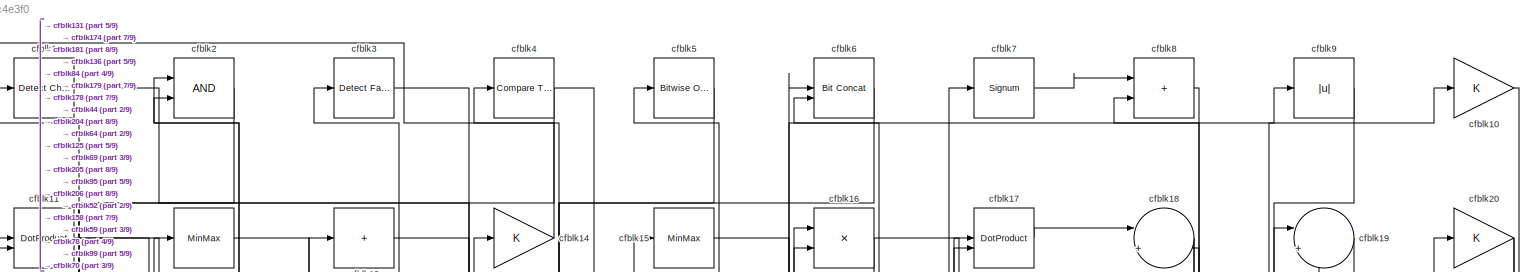
[diagram: root canvas - part 1/9, full width, top band]
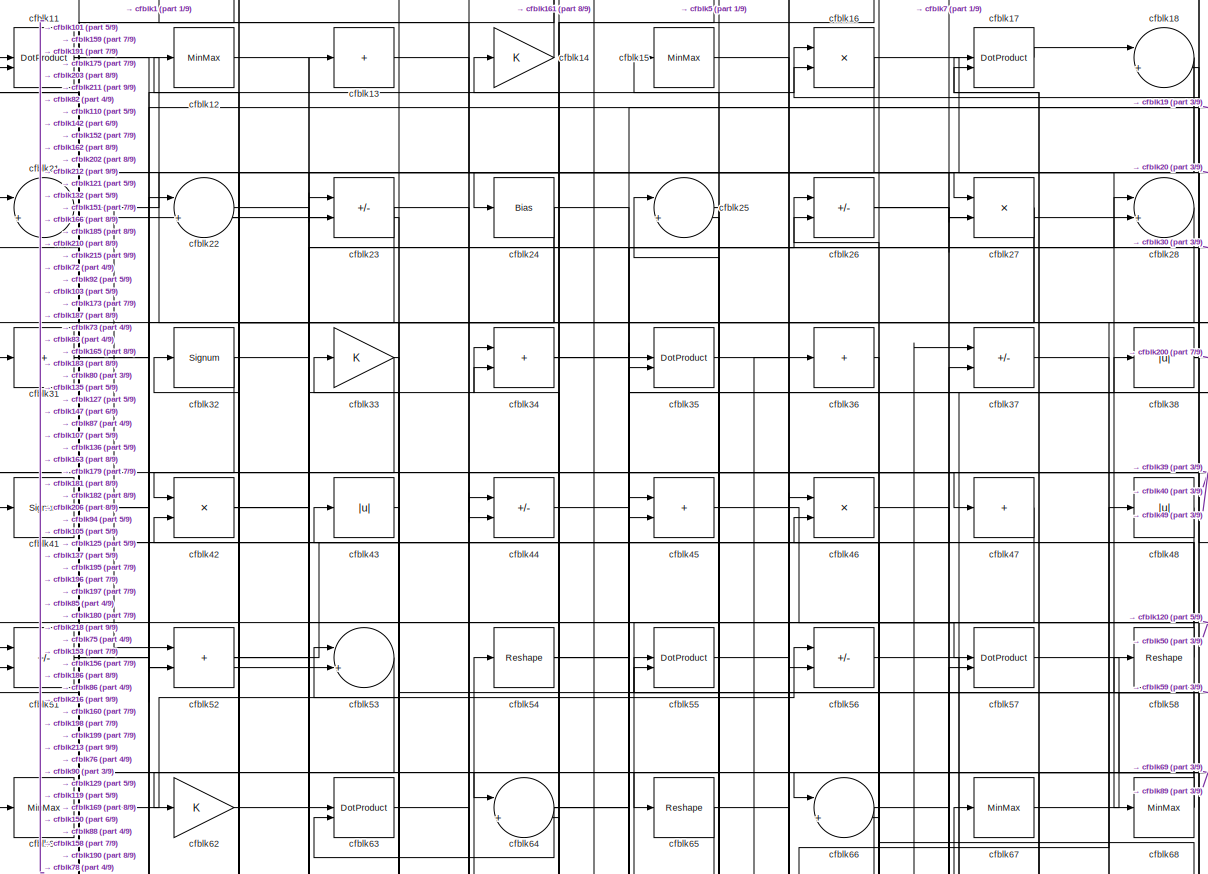
[diagram: root canvas - part 2/9, full width, top band]
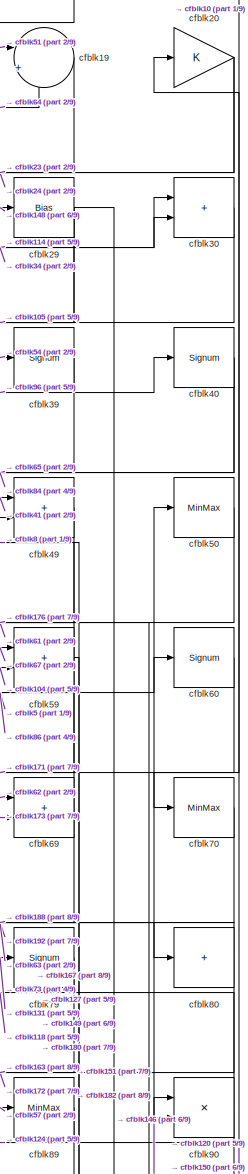
[diagram: root canvas - part 3/9, top right region]
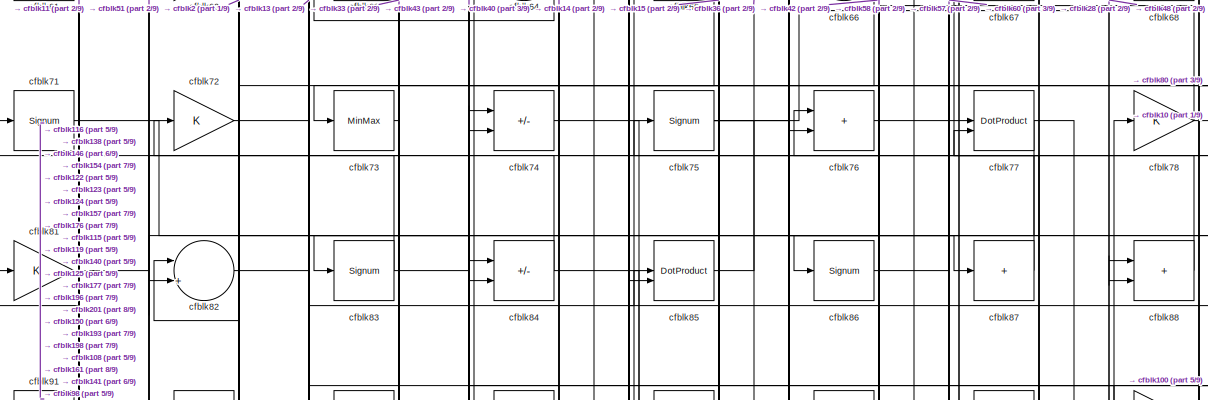
[diagram: root canvas - part 4/9, full width, middle band]
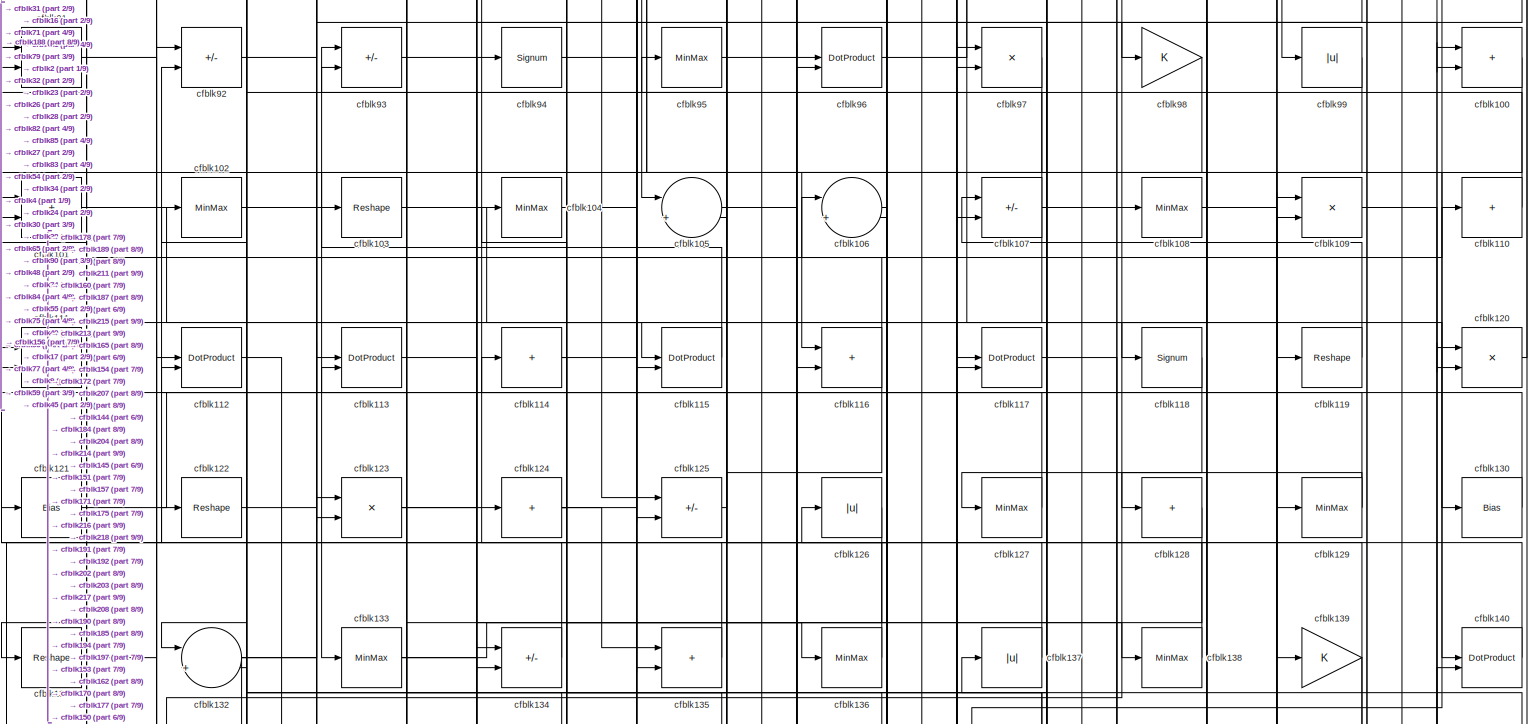
[diagram: root canvas - part 5/9, full width, middle band]
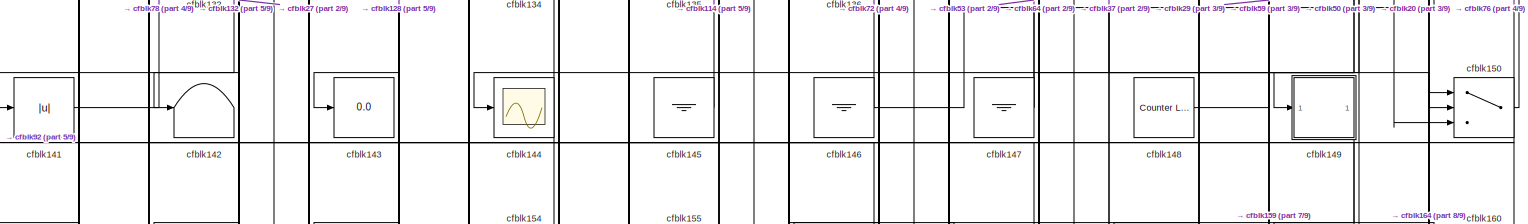
[diagram: root canvas - part 6/9, full width, middle band]
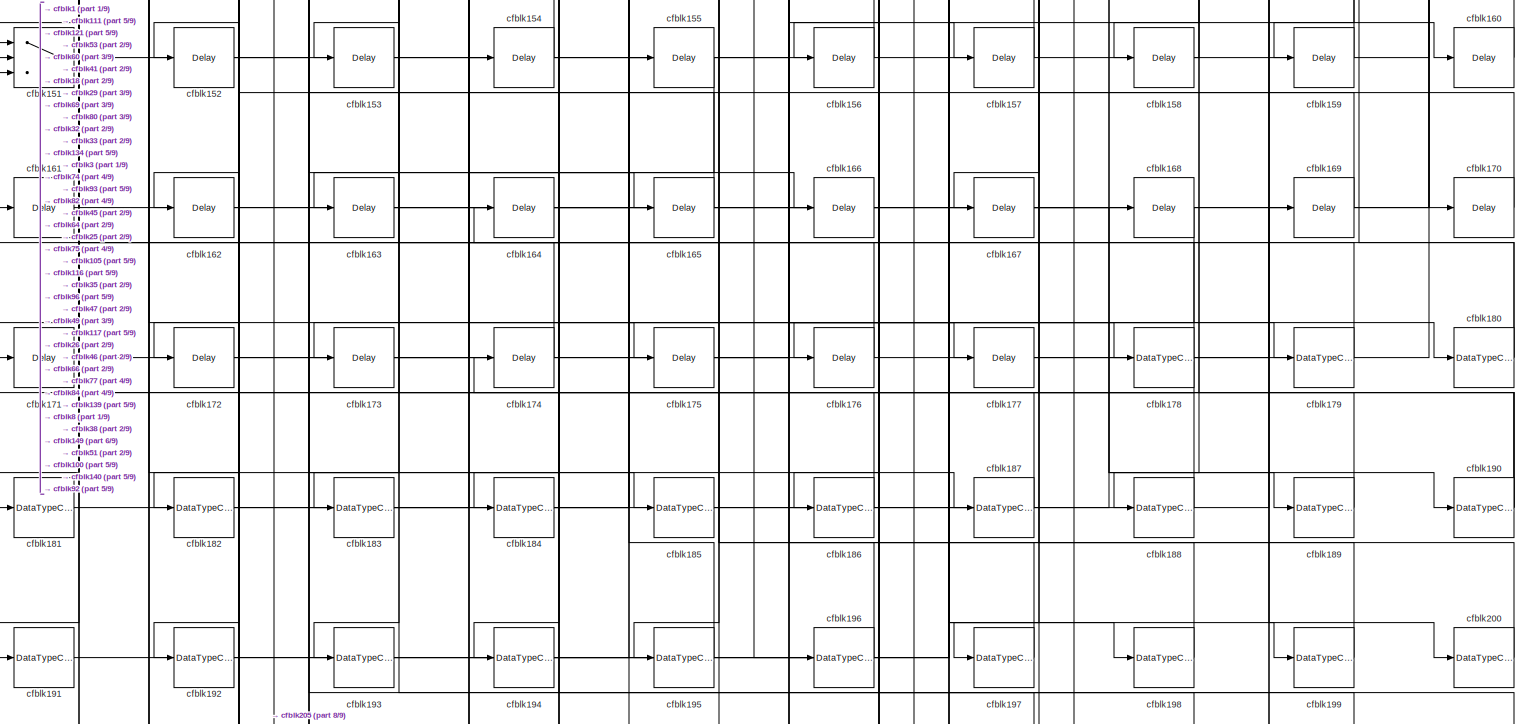
[diagram: root canvas - part 7/9, full width, bottom band]
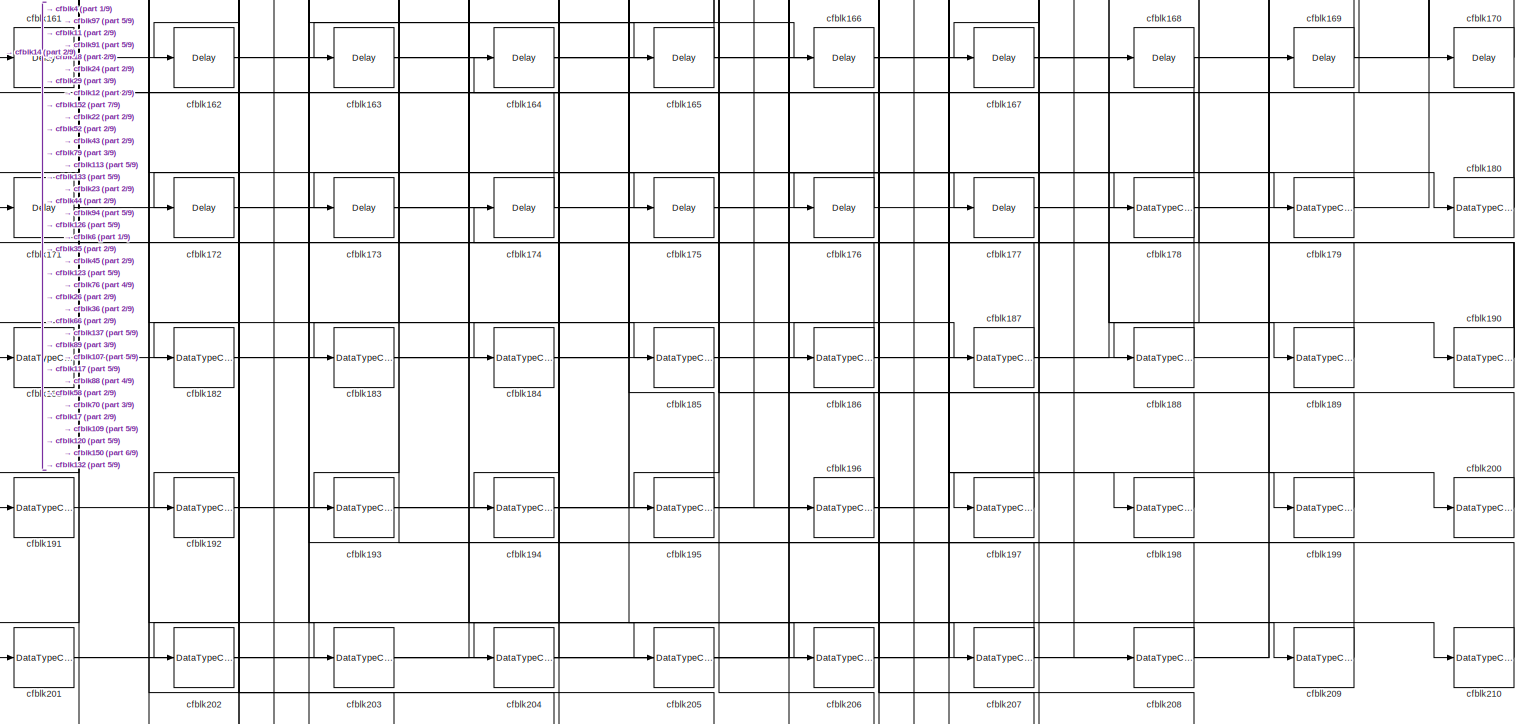
[diagram: root canvas - part 8/9, full width, bottom band]
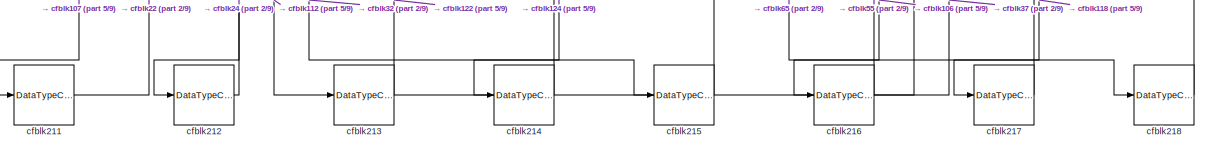
[diagram: root canvas - part 9/9, full width, bottom band]
MODEL slx_ac9d70c4e3f0
KIND model
CONFIG AbsTol = auto
CONFIG EnableMultiTasking = off
CONFIG FixedStep = auto
CONFIG MaxStep = auto
CONFIG MinStep = auto
CONFIG RelTol = 1e-3
CONFIG SampleTimeConstraint = Unconstrained
CONFIG SolverName = VariableStepAuto
CONFIG StartTime = 0.0
CONFIG StopTime = 10.0
BLOCK [Reference] cfblk1  REF=simulink/Logic and Bit
Operations/Detect
Change
  LibrarySourceBlock = hdlsllib/Logic and Bit\nOperations/Detect\nChange
  SourceBlock = simulink/Logic and Bit\nOperations/Detect\nChange
  SourceType = Detect Change
BLOCK [Gain] cfblk10
BLOCK [Sum] cfblk100
  IconShape = rectangular
BLOCK [Sum] cfblk101
  IconShape = rectangular
BLOCK [MinMax] cfblk102
BLOCK [Reshape] cfblk103
BLOCK [MinMax] cfblk104
BLOCK [Sum] cfblk105
  Inputs = |++
BLOCK [Sum] cfblk106
  Inputs = |++
BLOCK [Sum] cfblk107
  IconShape = rectangular
  Inputs = +-
BLOCK [MinMax] cfblk108
BLOCK [Product] cfblk109
  Inputs = */
  RndMeth = Zero
  SaturateOnIntegerOverflow = on
BLOCK [DotProduct] cfblk11
  OutDataTypeStr = Inherit: Inherit via internal rule
BLOCK [Sum] cfblk110
  IconShape = rectangular
  Inputs = +
BLOCK [Product] cfblk111
  Inputs = */
  RndMeth = Zero
  SaturateOnIntegerOverflow = on
BLOCK [DotProduct] cfblk112
  OutDataTypeStr = Inherit: Inherit via internal rule
BLOCK [DotProduct] cfblk113
  OutDataTypeStr = Inherit: Inherit via internal rule
BLOCK [Sum] cfblk114
  IconShape = rectangular
  Inputs = +
BLOCK [DotProduct] cfblk115
  OutDataTypeStr = Inherit: Inherit via internal rule
BLOCK [Sum] cfblk116
  IconShape = rectangular
BLOCK [DotProduct] cfblk117
  OutDataTypeStr = Inherit: Inherit via internal rule
BLOCK [Signum] cfblk118
BLOCK [Reshape] cfblk119
BLOCK [MinMax] cfblk12
BLOCK [Product] cfblk120
  Inputs = */
  RndMeth = Zero
  SaturateOnIntegerOverflow = on
BLOCK [Bias] cfblk121
  Bias = 0.0
  SaturateOnIntegerOverflow = off
BLOCK [Reshape] cfblk122
BLOCK [Product] cfblk123
  Inputs = */
  RndMeth = Zero
  SaturateOnIntegerOverflow = on
BLOCK [Sum] cfblk124
  IconShape = rectangular
  Inputs = +
BLOCK [Sum] cfblk125
  IconShape = rectangular
  Inputs = +-
BLOCK [Abs] cfblk126
  SaturateOnIntegerOverflow = off
BLOCK [MinMax] cfblk127
BLOCK [Sum] cfblk128
  IconShape = rectangular
  Inputs = +
BLOCK [MinMax] cfblk129
BLOCK [Sum] cfblk13
  IconShape = rectangular
  Inputs = +
BLOCK [Bias] cfblk130
  Bias = 0.0
  SaturateOnIntegerOverflow = off
BLOCK [Reshape] cfblk131
BLOCK [Sum] cfblk132
  Inputs = |++
BLOCK [MinMax] cfblk133
BLOCK [Sum] cfblk134
  IconShape = rectangular
  Inputs = +-
BLOCK [Sum] cfblk135
  IconShape = rectangular
BLOCK [MinMax] cfblk136
BLOCK [Abs] cfblk137
  SaturateOnIntegerOverflow = off
BLOCK [MinMax] cfblk138
BLOCK [Gain] cfblk139
BLOCK [Gain] cfblk14
BLOCK [DotProduct] cfblk140
  OutDataTypeStr = Inherit: Inherit via internal rule
BLOCK [Abs] cfblk141
  SaturateOnIntegerOverflow = off
BLOCK [Terminator] cfblk142
BLOCK [Display] cfblk143
  Decimation = 1
BLOCK [Scope] cfblk144
  Floating = off
  NumInputPorts = 1
  ScopeSpecificationString = Simulink.scopes.TimeScopeBlockCfg('CurrentConfiguration', extmgr.ConfigurationSet(extmgr.Configuration('Core','General UI',true),extmgr.Configuration('Core','Source UI',true),extmgr.Configuration('Sources','WiredSimulink',true,'DataLoggingVariableName','ScopeData2','DataLoggingSaveFormat','Array','DataLoggingLimitDataPoints',true,'DataLoggingDecimation','1'),extmgr.Configuration('Visuals','Time Do...<+868ch>
BLOCK [Ground] cfblk145
BLOCK [Ground] cfblk146
BLOCK [Ground] cfblk147
BLOCK [Reference] cfblk148  REF=hdlsllib/Sources/Counter
Limited
  SourceBlock = hdlsllib/Sources/Counter\nLimited
  SourceType = Counter Limited
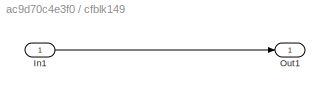
BLOCK [SubSystem] cfblk149
  LibrarySourceBlock = hdlsllib/Ports &\nSubsystems/Subsystem
BLOCK [Inport] cfblk149/In1
BLOCK [Outport] cfblk149/Out1
BLOCK [MinMax] cfblk15
BLOCK [Switch] cfblk150
  InputSameDT = off
  SaturateOnIntegerOverflow = off
BLOCK [Switch] cfblk151
  InputSameDT = off
  SaturateOnIntegerOverflow = off
BLOCK [Delay] cfblk152
  InputPortMap = u0
  SampleTime = 1
BLOCK [Delay] cfblk153
  InputPortMap = u0
  SampleTime = 1
BLOCK [Delay] cfblk154
  InputPortMap = u0
  SampleTime = 1
BLOCK [Delay] cfblk155
  InputPortMap = u0
  SampleTime = 1
BLOCK [Delay] cfblk156
  InputPortMap = u0
  SampleTime = 1
BLOCK [Delay] cfblk157
  InputPortMap = u0
  SampleTime = 1
BLOCK [Delay] cfblk158
  InputPortMap = u0
  SampleTime = 1
BLOCK [Delay] cfblk159
  InputPortMap = u0
  SampleTime = 1
BLOCK [Product] cfblk16
  Inputs = */
  RndMeth = Zero
  SaturateOnIntegerOverflow = on
BLOCK [Delay] cfblk160
  InputPortMap = u0
  SampleTime = 1
BLOCK [Delay] cfblk161
  InputPortMap = u0
  SampleTime = 1
BLOCK [Delay] cfblk162
  InputPortMap = u0
  SampleTime = 1
BLOCK [Delay] cfblk163
  InputPortMap = u0
  SampleTime = 1
BLOCK [Delay] cfblk164
  InputPortMap = u0
  SampleTime = 1
BLOCK [Delay] cfblk165
  InputPortMap = u0
  SampleTime = 1
BLOCK [Delay] cfblk166
  InputPortMap = u0
  SampleTime = 1
BLOCK [Delay] cfblk167
  InputPortMap = u0
  SampleTime = 1
BLOCK [Delay] cfblk168
  InputPortMap = u0
  SampleTime = 1
BLOCK [Delay] cfblk169
  InputPortMap = u0
  SampleTime = 1
BLOCK [DotProduct] cfblk17
  OutDataTypeStr = Inherit: Inherit via internal rule
BLOCK [Delay] cfblk170
  InputPortMap = u0
  SampleTime = 1
BLOCK [Delay] cfblk171
  InputPortMap = u0
  SampleTime = 1
BLOCK [Delay] cfblk172
  InputPortMap = u0
  SampleTime = 1
BLOCK [Delay] cfblk173
  InputPortMap = u0
  SampleTime = 1
BLOCK [Delay] cfblk174
  InputPortMap = u0
  SampleTime = 1
BLOCK [Delay] cfblk175
  InputPortMap = u0
  SampleTime = 1
BLOCK [Delay] cfblk176
  InputPortMap = u0
  SampleTime = 1
BLOCK [Delay] cfblk177
  InputPortMap = u0
  SampleTime = 1
BLOCK [DataTypeConversion] cfblk178
  RndMeth = Floor
  SaturateOnIntegerOverflow = off
BLOCK [DataTypeConversion] cfblk179
  OutDataTypeStr = uint8
  RndMeth = Floor
  SaturateOnIntegerOverflow = off
BLOCK [Sum] cfblk18
  Inputs = |++
BLOCK [DataTypeConversion] cfblk180
  RndMeth = Floor
  SaturateOnIntegerOverflow = off
BLOCK [DataTypeConversion] cfblk181
  OutDataTypeStr = uint8
  RndMeth = Floor
  SaturateOnIntegerOverflow = off
BLOCK [DataTypeConversion] cfblk182
  OutDataTypeStr = uint8
  RndMeth = Floor
  SaturateOnIntegerOverflow = off
BLOCK [DataTypeConversion] cfblk183
  OutDataTypeStr = uint8
  RndMeth = Floor
  SaturateOnIntegerOverflow = off
BLOCK [DataTypeConversion] cfblk184
  OutDataTypeStr = uint8
  RndMeth = Floor
  SaturateOnIntegerOverflow = off
BLOCK [DataTypeConversion] cfblk185
  OutDataTypeStr = uint8
  RndMeth = Floor
  SaturateOnIntegerOverflow = off
BLOCK [DataTypeConversion] cfblk186
  OutDataTypeStr = uint8
  RndMeth = Floor
  SaturateOnIntegerOverflow = off
BLOCK [DataTypeConversion] cfblk187
  OutDataTypeStr = uint8
  RndMeth = Floor
  SaturateOnIntegerOverflow = off
BLOCK [DataTypeConversion] cfblk188
  OutDataTypeStr = uint8
  RndMeth = Floor
  SaturateOnIntegerOverflow = off
BLOCK [DataTypeConversion] cfblk189
  OutDataTypeStr = uint8
  RndMeth = Floor
  SaturateOnIntegerOverflow = off
BLOCK [Sum] cfblk19
  Inputs = |++
BLOCK [DataTypeConversion] cfblk190
  RndMeth = Floor
  SaturateOnIntegerOverflow = off
BLOCK [DataTypeConversion] cfblk191
  OutDataTypeStr = uint8
  RndMeth = Floor
  SaturateOnIntegerOverflow = off
BLOCK [DataTypeConversion] cfblk192
  OutDataTypeStr = uint8
  RndMeth = Floor
  SaturateOnIntegerOverflow = off
BLOCK [DataTypeConversion] cfblk193
  OutDataTypeStr = uint8
  RndMeth = Floor
  SaturateOnIntegerOverflow = off
BLOCK [DataTypeConversion] cfblk194
  OutDataTypeStr = uint8
  RndMeth = Floor
  SaturateOnIntegerOverflow = off
BLOCK [DataTypeConversion] cfblk195
  OutDataTypeStr = uint8
  RndMeth = Floor
  SaturateOnIntegerOverflow = off
BLOCK [DataTypeConversion] cfblk196
  OutDataTypeStr = uint8
  RndMeth = Floor
  SaturateOnIntegerOverflow = off
BLOCK [DataTypeConversion] cfblk197
  OutDataTypeStr = uint8
  RndMeth = Floor
  SaturateOnIntegerOverflow = off
BLOCK [DataTypeConversion] cfblk198
  OutDataTypeStr = uint8
  RndMeth = Floor
  SaturateOnIntegerOverflow = off
BLOCK [DataTypeConversion] cfblk199
  OutDataTypeStr = uint8
  RndMeth = Floor
  SaturateOnIntegerOverflow = off
BLOCK [Logic] cfblk2
  AllPortsSameDT = off
  OutDataTypeStr = boolean
BLOCK [Gain] cfblk20
BLOCK [DataTypeConversion] cfblk200
  OutDataTypeStr = uint8
  RndMeth = Floor
  SaturateOnIntegerOverflow = off
BLOCK [DataTypeConversion] cfblk201
  RndMeth = Floor
  SaturateOnIntegerOverflow = off
BLOCK [DataTypeConversion] cfblk202
  OutDataTypeStr = uint8
  RndMeth = Floor
  SaturateOnIntegerOverflow = off
BLOCK [DataTypeConversion] cfblk203
  OutDataTypeStr = uint8
  RndMeth = Floor
  SaturateOnIntegerOverflow = off
BLOCK [DataTypeConversion] cfblk204
  RndMeth = Floor
  SaturateOnIntegerOverflow = off
BLOCK [DataTypeConversion] cfblk205
  OutDataTypeStr = uint8
  RndMeth = Floor
  SaturateOnIntegerOverflow = off
BLOCK [DataTypeConversion] cfblk206
  OutDataTypeStr = uint8
  RndMeth = Floor
  SaturateOnIntegerOverflow = off
BLOCK [DataTypeConversion] cfblk207
  RndMeth = Floor
  SaturateOnIntegerOverflow = off
BLOCK [DataTypeConversion] cfblk208
  OutDataTypeStr = uint8
  RndMeth = Floor
  SaturateOnIntegerOverflow = off
BLOCK [DataTypeConversion] cfblk209
  OutDataTypeStr = uint8
  RndMeth = Floor
  SaturateOnIntegerOverflow = off
BLOCK [Sum] cfblk21
  Inputs = |++
BLOCK [DataTypeConversion] cfblk210
  OutDataTypeStr = uint8
  RndMeth = Floor
  SaturateOnIntegerOverflow = off
BLOCK [DataTypeConversion] cfblk211
  OutDataTypeStr = uint8
  RndMeth = Floor
  SaturateOnIntegerOverflow = off
BLOCK [DataTypeConversion] cfblk212
  OutDataTypeStr = uint8
  RndMeth = Floor
  SaturateOnIntegerOverflow = off
BLOCK [DataTypeConversion] cfblk213
  RndMeth = Floor
  SaturateOnIntegerOverflow = off
BLOCK [DataTypeConversion] cfblk214
  OutDataTypeStr = uint8
  RndMeth = Floor
  SaturateOnIntegerOverflow = off
BLOCK [DataTypeConversion] cfblk215
  OutDataTypeStr = uint8
  RndMeth = Floor
  SaturateOnIntegerOverflow = off
BLOCK [DataTypeConversion] cfblk216
  RndMeth = Floor
  SaturateOnIntegerOverflow = off
BLOCK [DataTypeConversion] cfblk217
  OutDataTypeStr = uint8
  RndMeth = Floor
  SaturateOnIntegerOverflow = off
BLOCK [DataTypeConversion] cfblk218
  OutDataTypeStr = uint8
  RndMeth = Floor
  SaturateOnIntegerOverflow = off
BLOCK [Sum] cfblk22
  Inputs = |++
BLOCK [Sum] cfblk23
  IconShape = rectangular
  Inputs = +-
BLOCK [Bias] cfblk24
  Bias = 0.0
  SaturateOnIntegerOverflow = off
BLOCK [Sum] cfblk25
  Inputs = |++
BLOCK [Sum] cfblk26
  IconShape = rectangular
  Inputs = +-
BLOCK [Product] cfblk27
  Inputs = */
  RndMeth = Zero
  SaturateOnIntegerOverflow = on
BLOCK [Sum] cfblk28
  Inputs = |++
BLOCK [Bias] cfblk29
  Bias = 0.0
  SaturateOnIntegerOverflow = off
BLOCK [Reference] cfblk3  REF=hdlsllib/Logic and Bit
Operations/Detect Fall
Negative
  SourceBlock = hdlsllib/Logic and Bit\nOperations/Detect Fall\nNegative
  SourceType = Detect Fall Negative
BLOCK [Sum] cfblk30
  IconShape = rectangular
BLOCK [Sum] cfblk31
  IconShape = rectangular
  Inputs = +
BLOCK [Signum] cfblk32
BLOCK [Gain] cfblk33
BLOCK [Sum] cfblk34
  IconShape = rectangular
BLOCK [DotProduct] cfblk35
  OutDataTypeStr = Inherit: Inherit via internal rule
BLOCK [Sum] cfblk36
  IconShape = rectangular
  Inputs = +
BLOCK [Sum] cfblk37
  IconShape = rectangular
  Inputs = +-
BLOCK [Abs] cfblk38
  SaturateOnIntegerOverflow = off
BLOCK [Signum] cfblk39
BLOCK [Reference] cfblk4  REF=hdlsllib/Logic and Bit
Operations/Compare
To Constant
  SourceBlock = hdlsllib/Logic and Bit\nOperations/Compare\nTo Constant
  SourceType = Compare To Constant
BLOCK [Signum] cfblk40
BLOCK [Signum] cfblk41
BLOCK [Product] cfblk42
  Inputs = */
  RndMeth = Zero
  SaturateOnIntegerOverflow = on
BLOCK [Abs] cfblk43
  SaturateOnIntegerOverflow = off
BLOCK [Sum] cfblk44
  IconShape = rectangular
  Inputs = +-
BLOCK [Sum] cfblk45
  IconShape = rectangular
BLOCK [Product] cfblk46
  Inputs = */
  RndMeth = Zero
  SaturateOnIntegerOverflow = on
BLOCK [Sum] cfblk47
  IconShape = rectangular
  Inputs = +
BLOCK [Abs] cfblk48
  SaturateOnIntegerOverflow = off
BLOCK [Sum] cfblk49
  IconShape = rectangular
BLOCK [Reference] cfblk5  REF=simulink/Logic and Bit
Operations/Bitwise
Operator
  LibrarySourceBlock = hdlsllib/Logic and Bit\nOperations/Bitwise\nOperator
  SourceBlock = simulink/Logic and Bit\nOperations/Bitwise\nOperator
  SourceType = Bitwise Operator
BLOCK [MinMax] cfblk50
BLOCK [Sum] cfblk51
  IconShape = rectangular
  Inputs = +-
BLOCK [Sum] cfblk52
  IconShape = rectangular
BLOCK [Sum] cfblk53
  Inputs = |++
BLOCK [Reshape] cfblk54
BLOCK [DotProduct] cfblk55
  OutDataTypeStr = Inherit: Inherit via internal rule
BLOCK [Sum] cfblk56
  IconShape = rectangular
  Inputs = +-
BLOCK [DotProduct] cfblk57
  OutDataTypeStr = Inherit: Inherit via internal rule
BLOCK [Reshape] cfblk58
BLOCK [Sum] cfblk59
  IconShape = rectangular
BLOCK [Reference] cfblk6  REF=hdlsllib/Logic and Bit
Operations/Bit Concat
  SourceBlock = hdlsllib/Logic and Bit\nOperations/Bit Concat
  SourceType = Bit Concat
BLOCK [Signum] cfblk60
BLOCK [MinMax] cfblk61
BLOCK [Gain] cfblk62
BLOCK [DotProduct] cfblk63
  OutDataTypeStr = Inherit: Inherit via internal rule
BLOCK [Sum] cfblk64
  Inputs = |++
BLOCK [Reshape] cfblk65
BLOCK [Sum] cfblk66
  Inputs = |++
BLOCK [MinMax] cfblk67
BLOCK [MinMax] cfblk68
BLOCK [Sum] cfblk69
  IconShape = rectangular
BLOCK [Signum] cfblk7
BLOCK [MinMax] cfblk70
BLOCK [Signum] cfblk71
BLOCK [Gain] cfblk72
BLOCK [MinMax] cfblk73
BLOCK [Sum] cfblk74
  IconShape = rectangular
  Inputs = +-
BLOCK [Signum] cfblk75
BLOCK [Sum] cfblk76
  IconShape = rectangular
BLOCK [DotProduct] cfblk77
  OutDataTypeStr = Inherit: Inherit via internal rule
BLOCK [Gain] cfblk78
BLOCK [Signum] cfblk79
BLOCK [Sum] cfblk8
  IconShape = rectangular
BLOCK [Sum] cfblk80
  IconShape = rectangular
  Inputs = +
BLOCK [Gain] cfblk81
BLOCK [Sum] cfblk82
  Inputs = |++
BLOCK [Signum] cfblk83
BLOCK [Sum] cfblk84
  IconShape = rectangular
  Inputs = +-
BLOCK [DotProduct] cfblk85
  OutDataTypeStr = Inherit: Inherit via internal rule
BLOCK [Signum] cfblk86
BLOCK [Sum] cfblk87
  IconShape = rectangular
  Inputs = +
BLOCK [Sum] cfblk88
  IconShape = rectangular
BLOCK [MinMax] cfblk89
BLOCK [Abs] cfblk9
  SaturateOnIntegerOverflow = off
BLOCK [Product] cfblk90
  Inputs = */
  RndMeth = Zero
  SaturateOnIntegerOverflow = on
BLOCK [Sum] cfblk91
  IconShape = rectangular
BLOCK [Sum] cfblk92
  IconShape = rectangular
  Inputs = +-
BLOCK [Sum] cfblk93
  IconShape = rectangular
  Inputs = +-
BLOCK [Signum] cfblk94
BLOCK [MinMax] cfblk95
BLOCK [DotProduct] cfblk96
  OutDataTypeStr = Inherit: Inherit via internal rule
BLOCK [Product] cfblk97
  Inputs = */
  RndMeth = Zero
  SaturateOnIntegerOverflow = on
BLOCK [Gain] cfblk98
BLOCK [Abs] cfblk99
  SaturateOnIntegerOverflow = off
LINE cfblk100:1 -> cfblk123:2
LINE cfblk101:1 -> cfblk130:1
LINE cfblk102:1 -> cfblk133:1
LINE cfblk103:1 -> cfblk115:1
LINE cfblk104:1 -> cfblk59:2
LINE cfblk105:1 -> cfblk157:1
LINE cfblk106:1 -> cfblk216:1
NET cfblk107:1 -> cfblk208:1, cfblk211:1, cfblk93:1
LINE cfblk108:1 -> cfblk139:1
LINE cfblk109:1 -> cfblk170:1
LINE cfblk10:1 -> cfblk70:1
LINE cfblk110:1 -> cfblk32:1
LINE cfblk111:1 -> cfblk151:1
LINE cfblk112:1 -> cfblk213:1
LINE cfblk113:1 -> cfblk207:1
NET cfblk114:1 -> cfblk144:1, cfblk30:1
LINE cfblk115:1 -> cfblk93:2
NET cfblk116:1 -> cfblk132:1, cfblk71:1
LINE cfblk117:1 -> cfblk190:1
LINE cfblk118:1 -> cfblk217:1
LINE cfblk119:1 -> cfblk17:1
NET cfblk11:1 -> cfblk203:1, cfblk63:1
LINE cfblk120:1 -> cfblk90:1
NET cfblk121:1 -> cfblk23:1, cfblk31:1
LINE cfblk122:1 -> cfblk85:1
NET cfblk123:1 -> cfblk135:2, cfblk74:2
NET cfblk124:1 -> cfblk104:1, cfblk135:1, cfblk214:1, cfblk90:2
LINE cfblk125:1 -> cfblk75:1
LINE cfblk126:1 -> cfblk184:1
LINE cfblk127:1 -> cfblk34:1
LINE cfblk128:1 -> cfblk143:1
NET cfblk129:1 -> cfblk101:2, cfblk128:1
LINE cfblk12:1 -> cfblk185:1
LINE cfblk130:1 -> cfblk102:1
LINE cfblk131:1 -> cfblk79:1
NET cfblk132:1 -> cfblk110:1, cfblk141:1, cfblk28:1
NET cfblk133:1 -> cfblk138:1, cfblk209:1
LINE cfblk134:1 -> cfblk111:2
LINE cfblk135:1 -> cfblk54:1
LINE cfblk136:1 -> cfblk2:1
LINE cfblk137:1 -> cfblk55:1
LINE cfblk138:1 -> cfblk81:1
NET cfblk139:1 -> cfblk107:1, cfblk194:1, cfblk197:1
LINE cfblk13:1 -> cfblk27:2
LINE cfblk140:1 -> cfblk95:1
LINE cfblk141:1 -> cfblk78:1
LINE cfblk145:1 -> cfblk114:1
NET cfblk146:1 -> cfblk50:1, cfblk72:1
NET cfblk147:1 -> cfblk53:1, cfblk64:2
LINE cfblk148:1 -> cfblk29:1
LINE cfblk149/In1:1 -> cfblk149/Out1:1
LINE cfblk149:1 -> cfblk159:1
LINE cfblk14:1 -> cfblk161:1
NET cfblk150:1 -> cfblk20:1, cfblk76:1, cfblk92:2
LINE cfblk151:1 -> cfblk96:1
LINE cfblk152:1 -> cfblk205:1
LINE cfblk153:1 -> cfblk100:1
LINE cfblk154:1 -> cfblk82:1
LINE cfblk155:1 -> cfblk193:1
LINE cfblk156:1 -> cfblk111:1
LINE cfblk157:1 -> cfblk84:1
LINE cfblk158:1 -> cfblk18:2
LINE cfblk159:1 -> cfblk51:2
LINE cfblk15:1 -> cfblk87:1
LINE cfblk160:1 -> cfblk92:1
LINE cfblk161:1 -> cfblk88:1
LINE cfblk162:1 -> cfblk120:1
LINE cfblk163:1 -> cfblk45:2
LINE cfblk164:1 -> cfblk150:1
LINE cfblk165:1 -> cfblk123:1
LINE cfblk166:1 -> cfblk66:2
LINE cfblk167:1 -> cfblk189:1
LINE cfblk168:1 -> cfblk183:1
LINE cfblk169:1 -> cfblk17:2
NET cfblk16:1 -> cfblk101:1, cfblk68:1
LINE cfblk170:1 -> cfblk132:2
LINE cfblk171:1 -> cfblk96:2
LINE cfblk172:1 -> cfblk134:1
LINE cfblk173:1 -> cfblk69:2
LINE cfblk174:1 -> cfblk1:1
LINE cfblk175:1 -> cfblk116:2
LINE cfblk176:1 -> cfblk74:1
LINE cfblk177:1 -> cfblk140:2
NET cfblk178:1 -> cfblk121:1, cfblk174:1
LINE cfblk179:1 -> cfblk3:1
LINE cfblk17:1 -> cfblk18:1
NET cfblk180:1 -> cfblk49:2, cfblk51:1
LINE cfblk181:1 -> cfblk35:1
LINE cfblk182:1 -> cfblk35:2
LINE cfblk183:1 -> cfblk44:1
LINE cfblk184:1 -> cfblk168:1
LINE cfblk185:1 -> cfblk109:1
LINE cfblk186:1 -> cfblk12:1
LINE cfblk187:1 -> cfblk43:1
LINE cfblk188:1 -> cfblk91:1
LINE cfblk189:1 -> cfblk91:2
NET cfblk18:1 -> cfblk152:1, cfblk202:1
NET cfblk190:1 -> cfblk137:1, cfblk26:2, cfblk58:1
LINE cfblk191:1 -> cfblk117:1
LINE cfblk192:1 -> cfblk117:2
LINE cfblk193:1 -> cfblk77:1
LINE cfblk194:1 -> cfblk155:1
LINE cfblk195:1 -> cfblk45:1
LINE cfblk196:1 -> cfblk25:1
LINE cfblk197:1 -> cfblk25:2
LINE cfblk198:1 -> cfblk77:2
LINE cfblk199:1 -> cfblk46:1
LINE cfblk19:1 -> cfblk41:1
LINE cfblk1:1 -> cfblk44:2
LINE cfblk200:1 -> cfblk46:2
NET cfblk201:1 -> cfblk76:2, cfblk94:1
LINE cfblk202:1 -> cfblk97:1
LINE cfblk203:1 -> cfblk97:2
NET cfblk204:1 -> cfblk109:2, cfblk4:1
LINE cfblk205:1 -> cfblk6:1
LINE cfblk206:1 -> cfblk6:2
NET cfblk207:1 -> cfblk126:1, cfblk169:1
LINE cfblk208:1 -> cfblk113:1
LINE cfblk209:1 -> cfblk113:2
NET cfblk20:1 -> cfblk23:2, cfblk24:1
LINE cfblk210:1 -> cfblk164:1
LINE cfblk211:1 -> cfblk22:1
LINE cfblk212:1 -> cfblk22:2
NET cfblk213:1 -> cfblk122:1, cfblk37:2
LINE cfblk214:1 -> cfblk112:1
LINE cfblk215:1 -> cfblk112:2
NET cfblk216:1 -> cfblk37:1, cfblk55:2
LINE cfblk217:1 -> cfblk106:1
LINE cfblk218:1 -> cfblk106:2
NET cfblk21:1 -> cfblk27:1, cfblk52:1
LINE cfblk22:1 -> cfblk210:1
NET cfblk23:1 -> cfblk165:1, cfblk52:2
NET cfblk24:1 -> cfblk136:1, cfblk162:1, cfblk212:1
LINE cfblk25:1 -> cfblk195:1
NET cfblk26:1 -> cfblk160:1, cfblk28:2
NET cfblk27:1 -> cfblk103:1, cfblk142:1
LINE cfblk28:1 -> cfblk88:2
NET cfblk29:1 -> cfblk150:3, cfblk151:3, cfblk182:1
LINE cfblk2:1 -> cfblk131:1
LINE cfblk30:1 -> cfblk105:2
NET cfblk31:1 -> cfblk16:2, cfblk53:2
NET cfblk32:1 -> cfblk151:2, cfblk215:1
NET cfblk33:1 -> cfblk173:1, cfblk42:1
NET cfblk34:1 -> cfblk30:2, cfblk47:1
LINE cfblk35:1 -> cfblk180:1
LINE cfblk36:1 -> cfblk186:1
LINE cfblk37:1 -> cfblk150:2
NET cfblk38:1 -> cfblk16:1, cfblk200:1
LINE cfblk39:1 -> cfblk65:1
LINE cfblk3:1 -> cfblk178:1
NET cfblk40:1 -> cfblk62:1, cfblk84:2
NET cfblk41:1 -> cfblk175:1, cfblk49:1
NET cfblk42:1 -> cfblk34:2, cfblk56:2
LINE cfblk43:1 -> cfblk83:1
LINE cfblk44:1 -> cfblk206:1
LINE cfblk45:1 -> cfblk120:2
LINE cfblk46:1 -> cfblk198:1
LINE cfblk47:1 -> cfblk156:1
LINE cfblk48:1 -> cfblk105:1
LINE cfblk49:1 -> cfblk176:1
NET cfblk4:1 -> cfblk125:1, cfblk181:1
LINE cfblk50:1 -> cfblk61:1
NET cfblk51:1 -> cfblk19:1, cfblk82:2
NET cfblk52:1 -> cfblk166:1, cfblk7:1
LINE cfblk53:1 -> cfblk191:1
NET cfblk54:1 -> cfblk107:2, cfblk39:1
LINE cfblk55:1 -> cfblk57:1
LINE cfblk56:1 -> cfblk129:1
LINE cfblk57:1 -> cfblk89:1
NET cfblk58:1 -> cfblk11:2, cfblk21:1, cfblk86:1
NET cfblk59:1 -> cfblk127:1, cfblk149:1, cfblk8:2
LINE cfblk5:1 -> cfblk64:1
LINE cfblk60:1 -> cfblk171:1
LINE cfblk61:1 -> cfblk56:1
LINE cfblk62:1 -> cfblk69:1
LINE cfblk63:1 -> cfblk80:1
NET cfblk64:1 -> cfblk179:1, cfblk19:2, cfblk63:2
NET cfblk65:1 -> cfblk125:2, cfblk218:1
NET cfblk66:1 -> cfblk153:1, cfblk199:1
LINE cfblk67:1 -> cfblk59:1
NET cfblk68:1 -> cfblk21:2, cfblk66:1
NET cfblk69:1 -> cfblk192:1, cfblk5:1
LINE cfblk6:1 -> cfblk204:1
LINE cfblk70:1 -> cfblk188:1
LINE cfblk71:1 -> cfblk124:1
LINE cfblk72:1 -> cfblk13:1
LINE cfblk73:1 -> cfblk33:1
LINE cfblk74:1 -> cfblk140:1
NET cfblk75:1 -> cfblk177:1, cfblk196:1, cfblk48:1
LINE cfblk76:1 -> cfblk57:2
NET cfblk77:1 -> cfblk108:1, cfblk115:2
NET cfblk78:1 -> cfblk10:1, cfblk42:2
LINE cfblk79:1 -> cfblk163:1
LINE cfblk7:1 -> cfblk8:1
NET cfblk80:1 -> cfblk172:1, cfblk73:1
LINE cfblk81:1 -> cfblk85:2
LINE cfblk82:1 -> cfblk100:2
NET cfblk83:1 -> cfblk11:1, cfblk98:1
NET cfblk84:1 -> cfblk119:1, cfblk2:2
LINE cfblk85:1 -> cfblk36:1
LINE cfblk86:1 -> cfblk60:1
LINE cfblk87:1 -> cfblk14:1
LINE cfblk88:1 -> cfblk15:1
LINE cfblk89:1 -> cfblk167:1
LINE cfblk8:1 -> cfblk158:1
NET cfblk90:1 -> cfblk118:1, cfblk67:1
LINE cfblk91:1 -> cfblk187:1
LINE cfblk92:1 -> cfblk26:1
LINE cfblk93:1 -> cfblk154:1
LINE cfblk94:1 -> cfblk38:1
LINE cfblk95:1 -> cfblk9:1
LINE cfblk96:1 -> cfblk40:1
LINE cfblk97:1 -> cfblk201:1
LINE cfblk98:1 -> cfblk134:2
LINE cfblk99:1 -> cfblk116:1
LINE cfblk9:1 -> cfblk99:1
note: NET lines group one-source signal fan-out (src -> all destinations, sorted); 1:1 wires keep LINE
